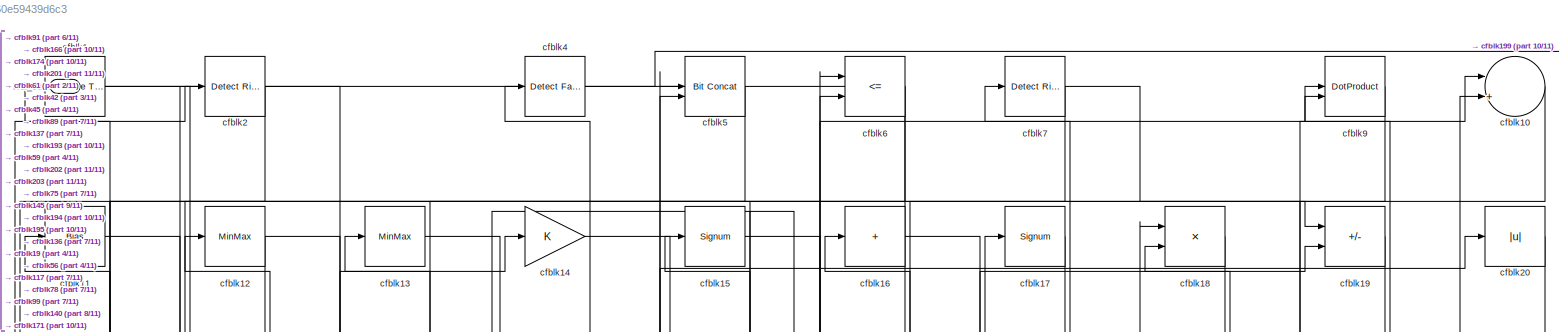
[diagram: root canvas - part 1/11, full width, top band]
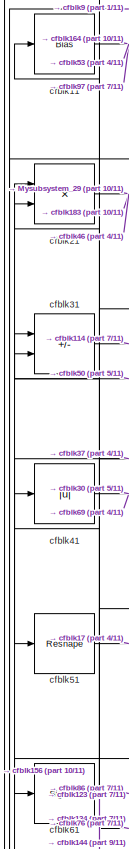
[diagram: root canvas - part 2/11, top left region]
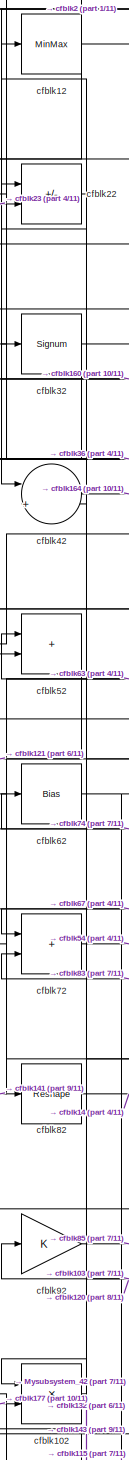
[diagram: root canvas - part 3/11, top left region]
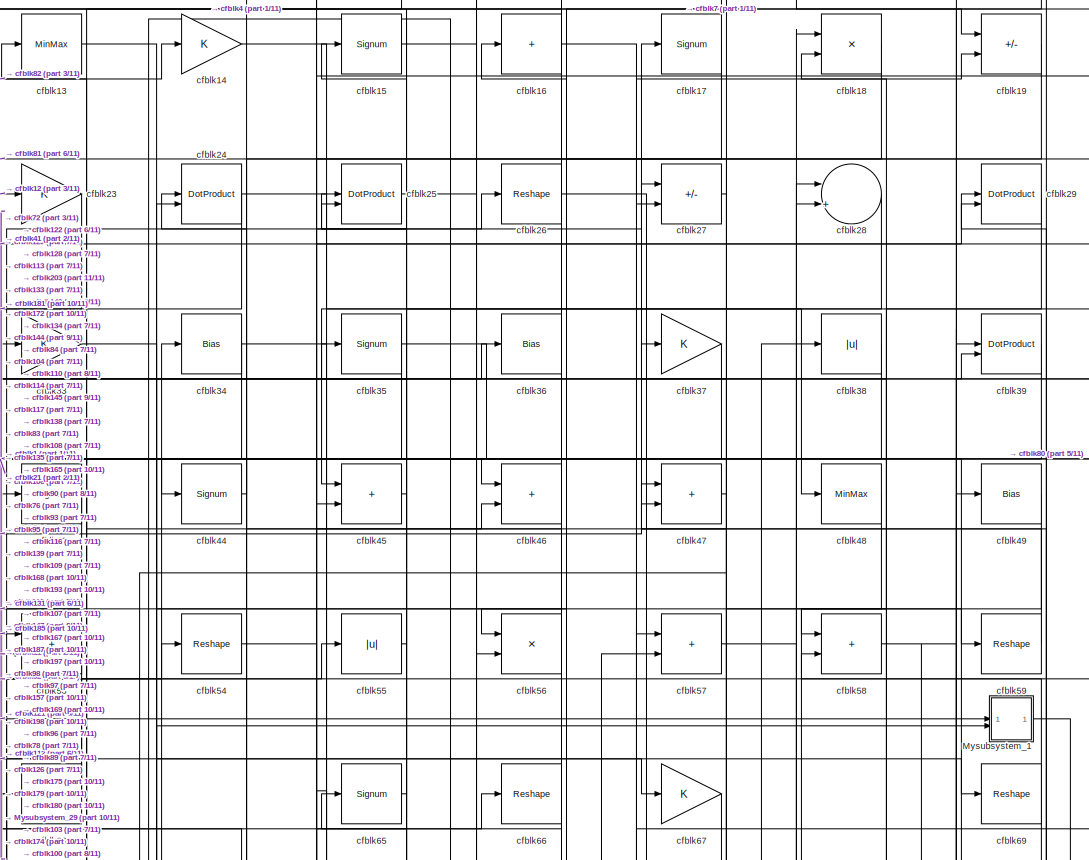
[diagram: root canvas - part 4/11, top center region]
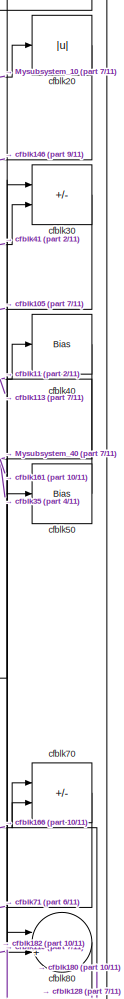
[diagram: root canvas - part 5/11, top right region]
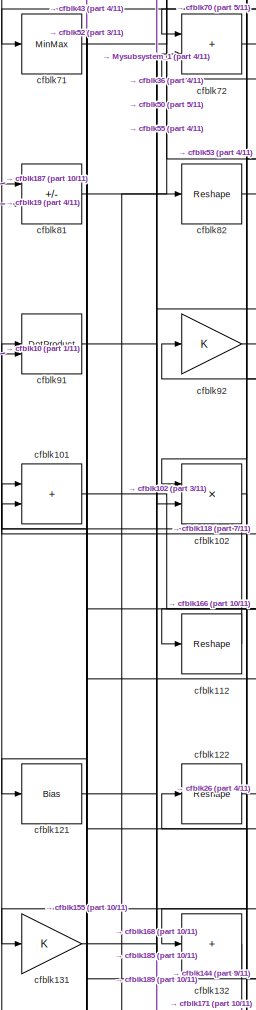
[diagram: root canvas - part 6/11, middle left region]
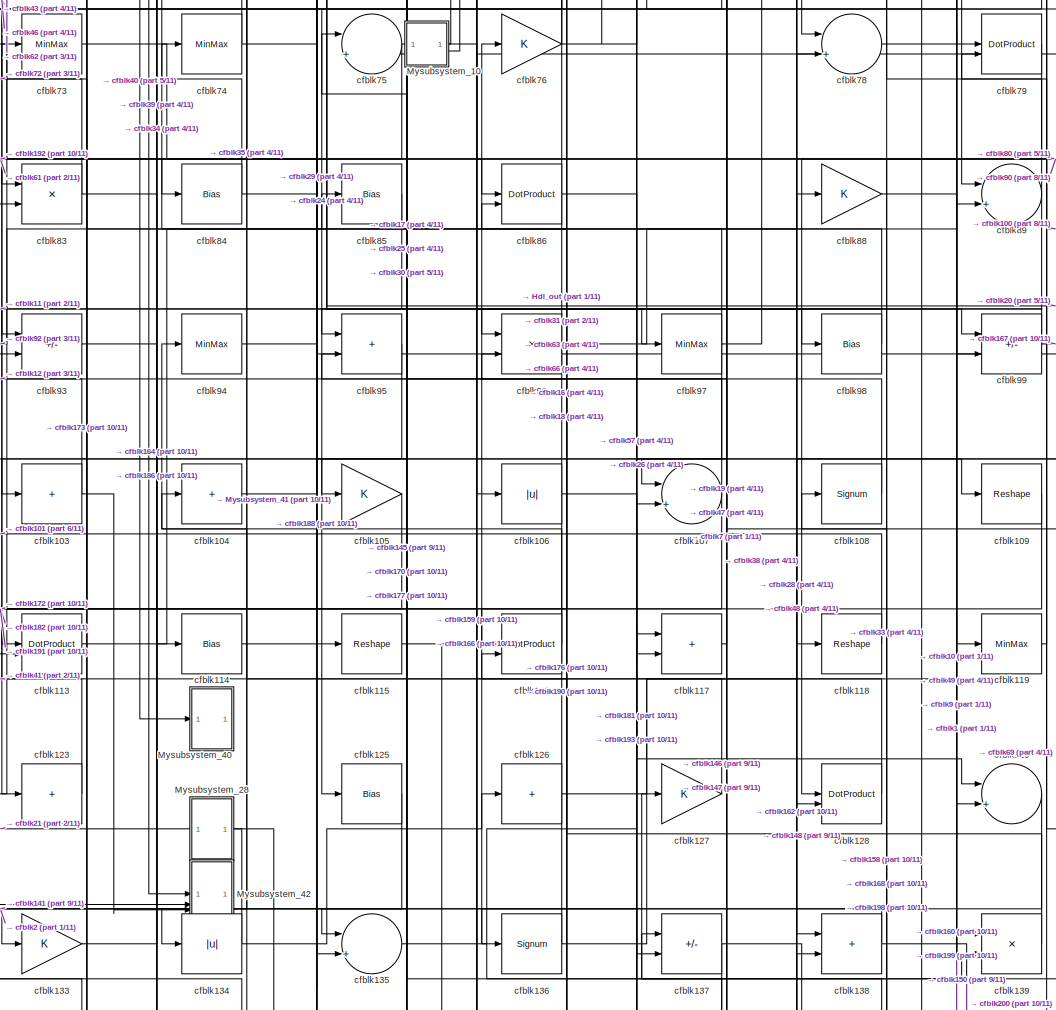
[diagram: root canvas - part 7/11, central region]
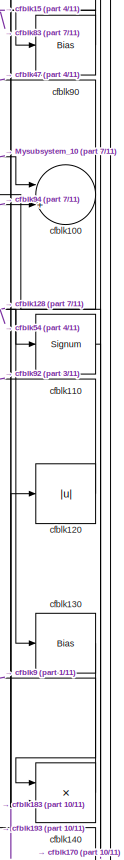
[diagram: root canvas - part 8/11, middle right region]
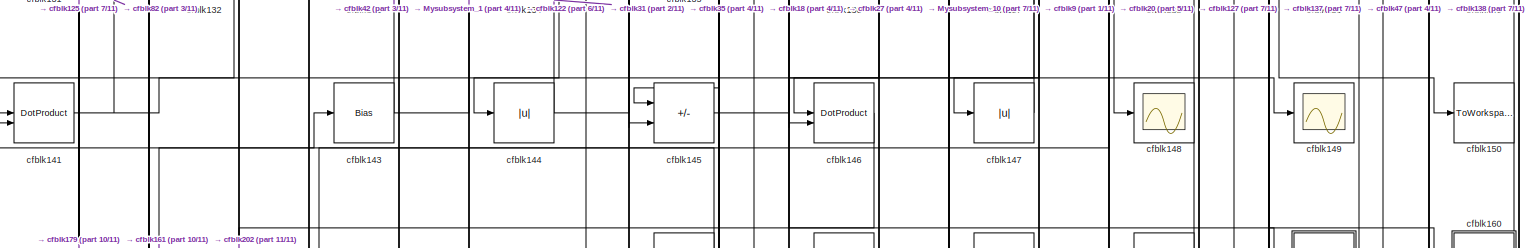
[diagram: root canvas - part 9/11, full width, bottom band]
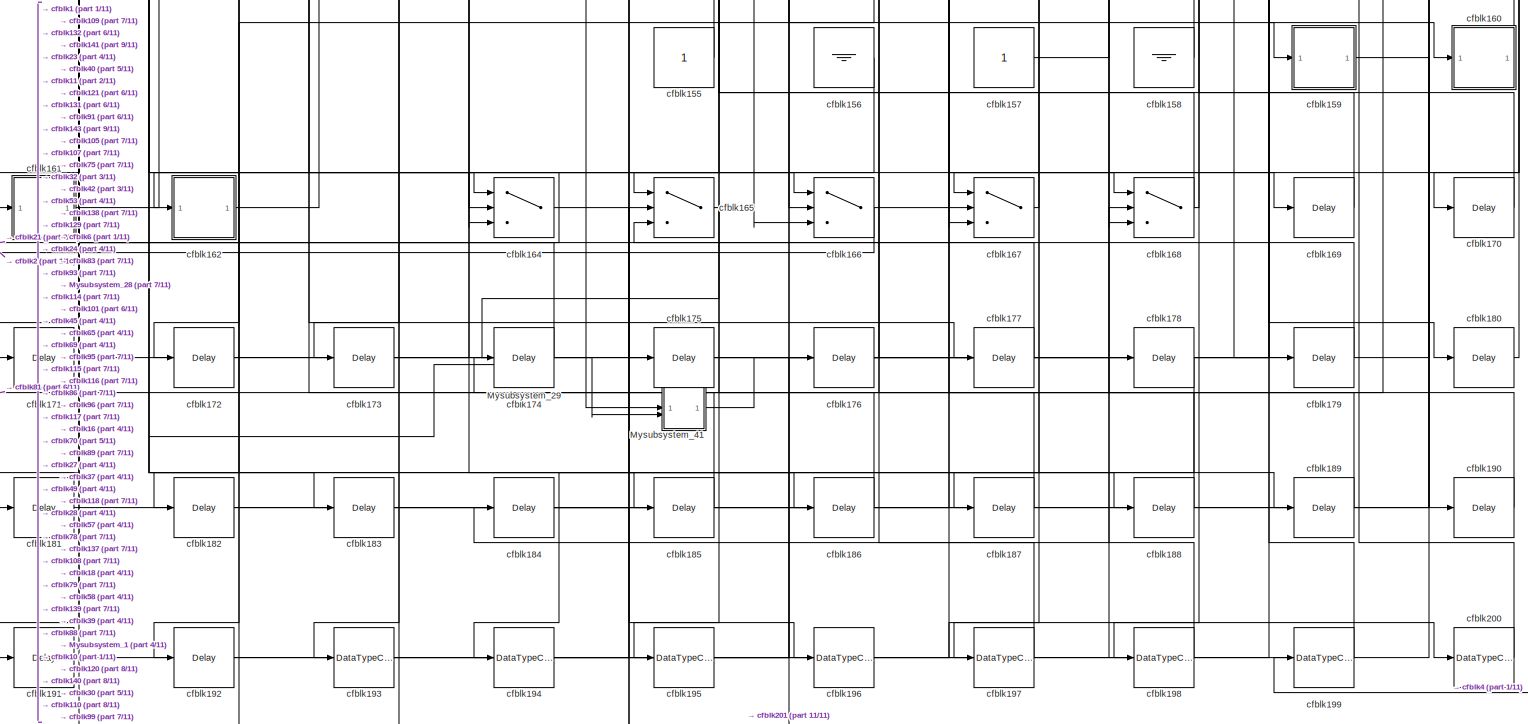
[diagram: root canvas - part 10/11, full width, bottom band]
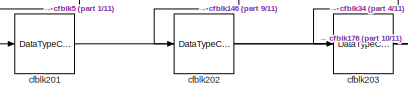
[diagram: root canvas - part 11/11, bottom left region]
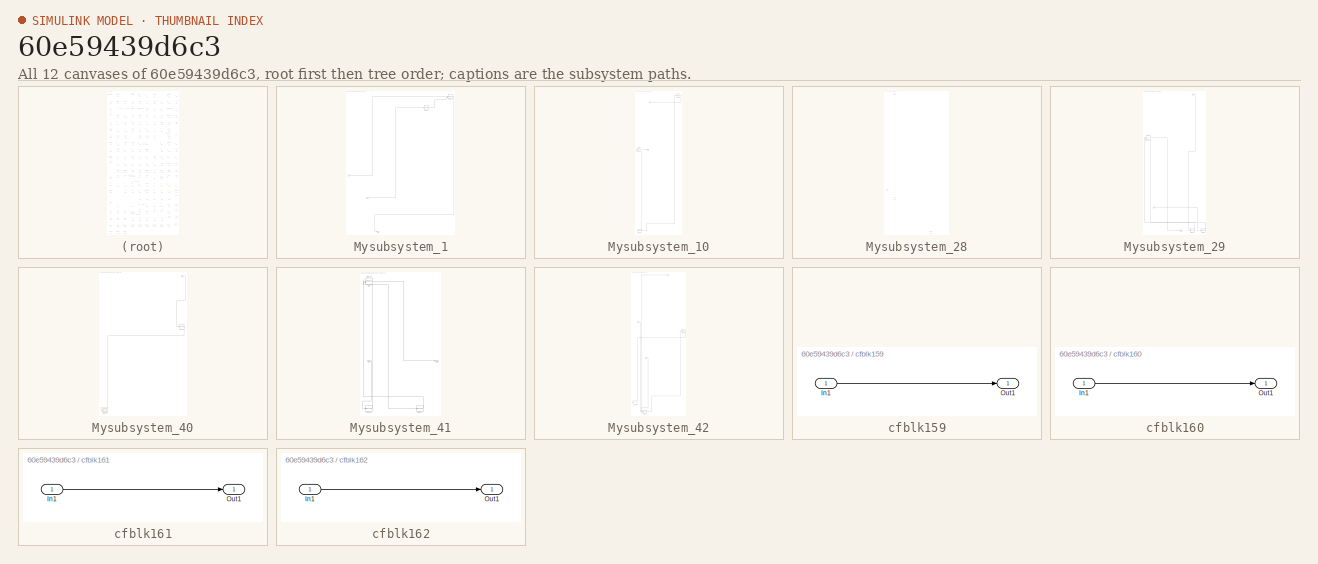
[diagram: thumbnail index - all 12 canvases of the model, root first then tree order]
MODEL slx_60e59439d6c3
KIND model
CONFIG AbsTol = auto
CONFIG EnableMultiTasking = off
CONFIG FixedStep = auto
CONFIG MaxStep = auto
CONFIG MinStep = auto
CONFIG RelTol = 1e-3
CONFIG SampleTimeConstraint = Unconstrained
CONFIG SolverName = VariableStepAuto
CONFIG StartTime = 0.0
CONFIG StopTime = 10.0
BLOCK [Outport] Hdl_out
  OutDataTypeStr = uint8
BLOCK [SubSystem] Mysubsystem_1
  RTWFcnName = Mysubsystem_1
  RTWFcnNameOpts = User specified
  RTWFileNameOpts = Use function name
  RTWSystemCode = Reusable function
  TreatAsAtomicUnit = on
BLOCK [Inport] Mysubsystem_1/In1
BLOCK [Inport] Mysubsystem_1/In2
  Port = 2
BLOCK [Outport] Mysubsystem_1/Out1
BLOCK [DotProduct] Mysubsystem_1/cfblk60
  OutDataTypeStr = Inherit: Inherit via internal rule
BLOCK [Signum] Mysubsystem_1/cfblk68
BLOCK [SubSystem] Mysubsystem_10
  RTWFcnName = Mysubsystem_10
  RTWFcnNameOpts = User specified
  RTWFileNameOpts = Use function name
  RTWSystemCode = Reusable function
  TreatAsAtomicUnit = on
BLOCK [Outport] Mysubsystem_10/Out2
  Port = 2
BLOCK [Reference] Mysubsystem_10/cfblk154  REF=hdlsllib/Sources/Counter
Free-Running
  SourceBlock = hdlsllib/Sources/Counter\nFree-Running
  SourceType = Counter Free-Running
BLOCK [Gain] Mysubsystem_10/cfblk64
BLOCK [Reference] Mysubsystem_10/cfblk8  REF=simulink/Logic and Bit
Operations/Extract Bits
  LibrarySourceBlock = hdlsllib/Logic and Bit\nOperations/Extract Bits
  SourceBlock = simulink/Logic and Bit\nOperations/Extract Bits
  SourceType = Extract Bits
BLOCK [Outport] Mysubsystem_10/y
BLOCK [SubSystem] Mysubsystem_28
  RTWFcnName = Mysubsystem_28
  RTWFcnNameOpts = User specified
  RTWFileNameOpts = Use function name
  RTWSystemCode = Reusable function
  TreatAsAtomicUnit = on
BLOCK [Signum] Mysubsystem_28/cfblk142
BLOCK [Reference] Mysubsystem_28/cfblk153  REF=hdlsllib/Sources/Counter
Limited
  SourceBlock = hdlsllib/Sources/Counter\nLimited
  SourceType = Counter Limited
BLOCK [DataTypeConversion] Mysubsystem_28/cfblk208
  OutDataTypeStr = uint8
  RndMeth = Floor
  SaturateOnIntegerOverflow = off
BLOCK [Reference] Mysubsystem_28/cfblk3  REF=simulink/Logic and Bit
Operations/Extract Bits
  LibrarySourceBlock = hdlsllib/Logic and Bit\nOperations/Extract Bits
  SourceBlock = simulink/Logic and Bit\nOperations/Extract Bits
  SourceType = Extract Bits
BLOCK [Outport] Mysubsystem_28/y
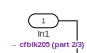
[diagram: Mysubsystem_29 - part 1/3, top right region]
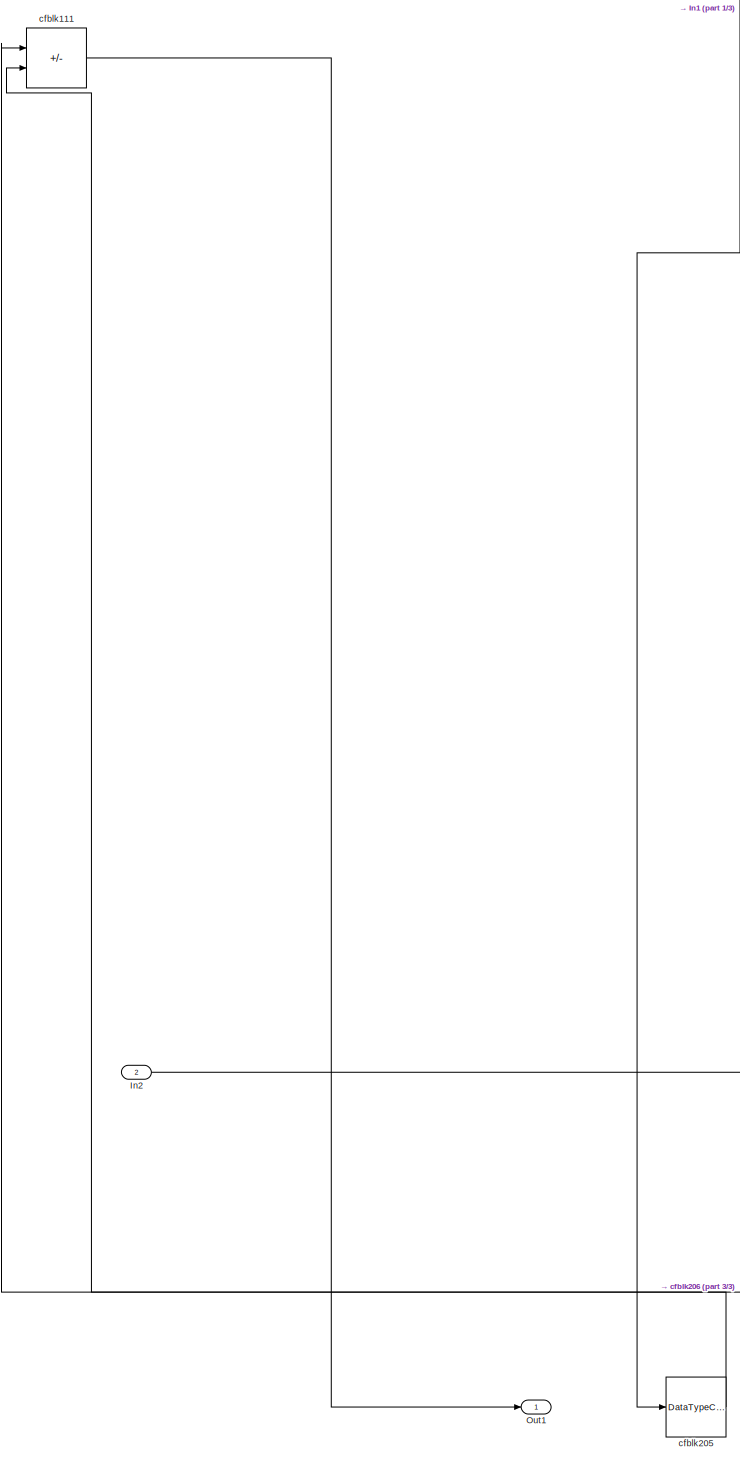
[diagram: Mysubsystem_29 - part 2/3, full width, middle band]
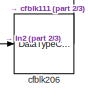
[diagram: Mysubsystem_29 - part 3/3, bottom right region]
BLOCK [SubSystem] Mysubsystem_29
  RTWFcnName = Mysubsystem_29
  RTWFcnNameOpts = User specified
  RTWFileNameOpts = Use function name
  RTWSystemCode = Reusable function
  TreatAsAtomicUnit = on
BLOCK [Inport] Mysubsystem_29/In1
BLOCK [Inport] Mysubsystem_29/In2
  Port = 2
BLOCK [Outport] Mysubsystem_29/Out1
BLOCK [Sum] Mysubsystem_29/cfblk111
  IconShape = rectangular
  Inputs = +-
BLOCK [DataTypeConversion] Mysubsystem_29/cfblk205
  OutDataTypeStr = uint8
  RndMeth = Floor
  SaturateOnIntegerOverflow = off
BLOCK [DataTypeConversion] Mysubsystem_29/cfblk206
  OutDataTypeStr = uint8
  RndMeth = Floor
  SaturateOnIntegerOverflow = off
BLOCK [SubSystem] Mysubsystem_40
  RTWFcnName = Mysubsystem_40
  RTWFcnNameOpts = User specified
  RTWFileNameOpts = Use function name
  RTWSystemCode = Reusable function
  TreatAsAtomicUnit = on
BLOCK [Inport] Mysubsystem_40/In1
BLOCK [Scope] Mysubsystem_40/cfblk151
  Floating = off
  NumInputPorts = 1
  ScopeSpecificationString = Simulink.scopes.TimeScopeBlockCfg('CurrentConfiguration', extmgr.ConfigurationSet(extmgr.Configuration('Core','General UI',true),extmgr.Configuration('Core','Source UI',true),extmgr.Configuration('Sources','WiredSimulink',true,'DataLoggingVariableName','ScopeData2','DataLoggingSaveFormat','Array','DataLoggingLimitDataPoints',true,'DataLoggingDecimation','1'),extmgr.Configuration('Visuals','Time Do...<+868ch>  <repeated x3 — deduplicated; at blocks: cfblk151, cfblk148, cfblk149>
BLOCK [Reshape] Mysubsystem_40/cfblk87
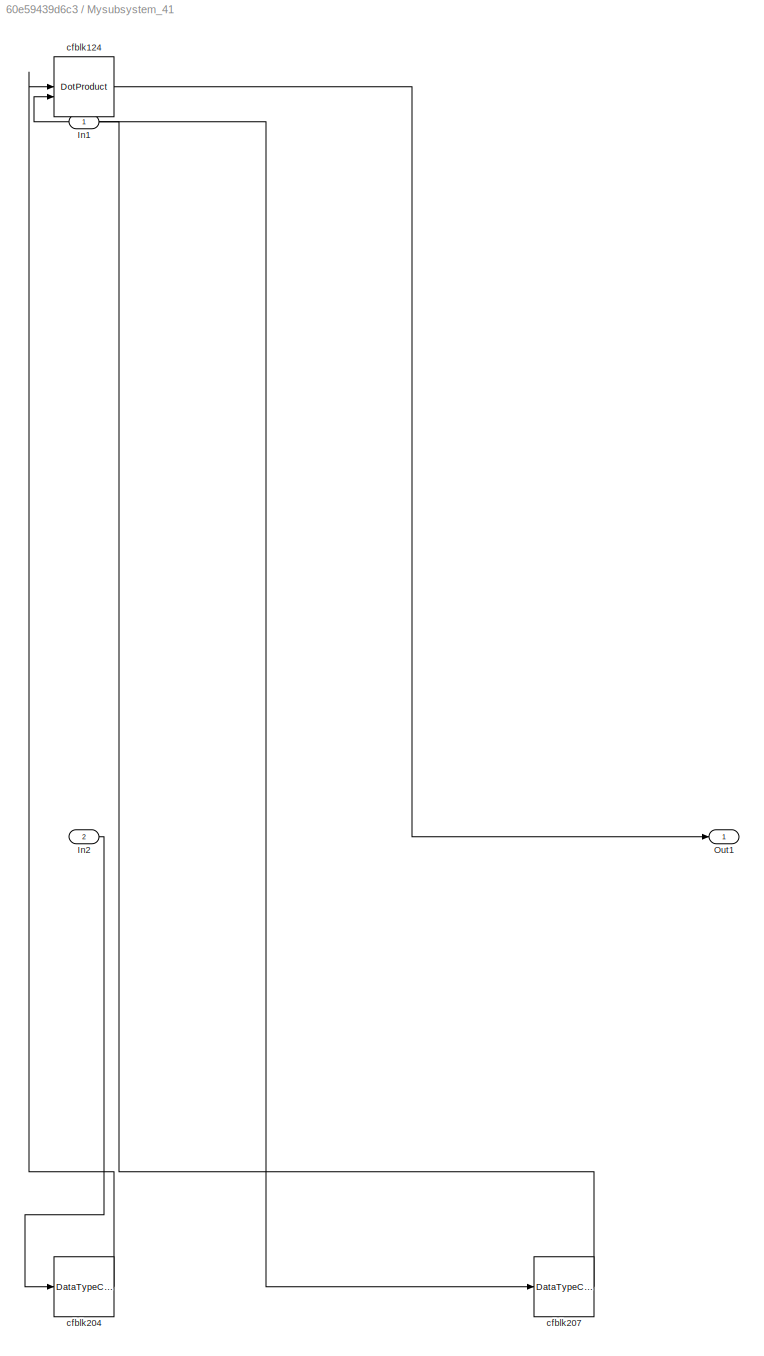
BLOCK [SubSystem] Mysubsystem_41
  RTWFcnName = Mysubsystem_41
  RTWFcnNameOpts = User specified
  RTWFileNameOpts = Use function name
  RTWSystemCode = Reusable function
  TreatAsAtomicUnit = on
BLOCK [Inport] Mysubsystem_41/In1
BLOCK [Inport] Mysubsystem_41/In2
  Port = 2
BLOCK [Outport] Mysubsystem_41/Out1
BLOCK [DotProduct] Mysubsystem_41/cfblk124
  OutDataTypeStr = Inherit: Inherit via internal rule
BLOCK [DataTypeConversion] Mysubsystem_41/cfblk204
  OutDataTypeStr = uint8
  RndMeth = Floor
  SaturateOnIntegerOverflow = off
BLOCK [DataTypeConversion] Mysubsystem_41/cfblk207
  OutDataTypeStr = uint8
  RndMeth = Floor
  SaturateOnIntegerOverflow = off
BLOCK [SubSystem] Mysubsystem_42
  RTWFcnName = Mysubsystem_42
  RTWFcnNameOpts = User specified
  RTWFileNameOpts = Use function name
  RTWSystemCode = Reusable function
  TreatAsAtomicUnit = on
BLOCK [Inport] Mysubsystem_42/In1
BLOCK [Inport] Mysubsystem_42/In2
  Port = 2
BLOCK [Inport] Mysubsystem_42/In3
  Port = 3
BLOCK [Terminator] Mysubsystem_42/cfblk152
BLOCK [Switch] Mysubsystem_42/cfblk163
  InputSameDT = off
  SaturateOnIntegerOverflow = off
BLOCK [MinMax] Mysubsystem_42/cfblk77
BLOCK [Reference] cfblk1  REF=hdlsllib/Logic and Bit
Operations/Compare
To Constant
  SourceBlock = hdlsllib/Logic and Bit\nOperations/Compare\nTo Constant
  SourceType = Compare To Constant
BLOCK [Sum] cfblk10
  Inputs = |++
  OutDataTypeStr = uint8
BLOCK [Sum] cfblk100
  Inputs = |++
  OutDataTypeStr = uint8
BLOCK [Sum] cfblk101
  IconShape = rectangular
  OutDataTypeStr = uint8
BLOCK [Product] cfblk102
  Inputs = */
  OutDataTypeStr = uint8
  RndMeth = Zero
  SaturateOnIntegerOverflow = on
BLOCK [Sum] cfblk103
  IconShape = rectangular
  Inputs = +
  OutDataTypeStr = uint8
BLOCK [Sum] cfblk104
  IconShape = rectangular
  Inputs = +
  OutDataTypeStr = uint8
BLOCK [Gain] cfblk105
  OutDataTypeStr = uint8
BLOCK [Abs] cfblk106
  OutDataTypeStr = uint8
  SaturateOnIntegerOverflow = off
BLOCK [Sum] cfblk107
  Inputs = |++
  OutDataTypeStr = uint8
BLOCK [Signum] cfblk108
BLOCK [Reshape] cfblk109
BLOCK [Bias] cfblk11
  Bias = 0.0
  SaturateOnIntegerOverflow = off
BLOCK [Signum] cfblk110
BLOCK [Reshape] cfblk112
BLOCK [DotProduct] cfblk113
  OutDataTypeStr = uint8
BLOCK [Bias] cfblk114
  Bias = 0.0
  SaturateOnIntegerOverflow = off
BLOCK [Reshape] cfblk115
BLOCK [DotProduct] cfblk116
  OutDataTypeStr = uint8
BLOCK [Sum] cfblk117
  IconShape = rectangular
  OutDataTypeStr = uint8
BLOCK [Reshape] cfblk118
BLOCK [MinMax] cfblk119
  OutDataTypeStr = uint8
BLOCK [MinMax] cfblk12
  OutDataTypeStr = uint8
BLOCK [Abs] cfblk120
  OutDataTypeStr = uint8
  SaturateOnIntegerOverflow = off
BLOCK [Bias] cfblk121
  Bias = 0.0
  SaturateOnIntegerOverflow = off
BLOCK [Reshape] cfblk122
BLOCK [Sum] cfblk123
  IconShape = rectangular
  Inputs = +
  OutDataTypeStr = uint8
BLOCK [Bias] cfblk125
  Bias = 0.0
  SaturateOnIntegerOverflow = off
BLOCK [Sum] cfblk126
  IconShape = rectangular
  Inputs = +
  OutDataTypeStr = uint8
BLOCK [Gain] cfblk127
  OutDataTypeStr = uint8
BLOCK [DotProduct] cfblk128
  OutDataTypeStr = uint8
BLOCK [Sum] cfblk129
  Inputs = |++
  OutDataTypeStr = uint8
BLOCK [MinMax] cfblk13
  OutDataTypeStr = uint8
BLOCK [Bias] cfblk130
  Bias = 0.0
  SaturateOnIntegerOverflow = off
BLOCK [Gain] cfblk131
  OutDataTypeStr = uint8
BLOCK [Sum] cfblk132
  IconShape = rectangular
  Inputs = +
  OutDataTypeStr = uint8
BLOCK [Gain] cfblk133
  OutDataTypeStr = uint8
BLOCK [Abs] cfblk134
  OutDataTypeStr = uint8
  SaturateOnIntegerOverflow = off
BLOCK [Sum] cfblk135
  Inputs = |++
  OutDataTypeStr = uint8
BLOCK [Signum] cfblk136
BLOCK [Sum] cfblk137
  IconShape = rectangular
  Inputs = +-
  OutDataTypeStr = uint8
BLOCK [Sum] cfblk138
  IconShape = rectangular
  OutDataTypeStr = uint8
BLOCK [Product] cfblk139
  Inputs = */
  OutDataTypeStr = uint8
  RndMeth = Zero
  SaturateOnIntegerOverflow = on
BLOCK [Gain] cfblk14
  OutDataTypeStr = uint8
BLOCK [Product] cfblk140
  Inputs = */
  OutDataTypeStr = uint8
  RndMeth = Zero
  SaturateOnIntegerOverflow = on
BLOCK [DotProduct] cfblk141
  OutDataTypeStr = uint8
BLOCK [Bias] cfblk143
  Bias = 0.0
  SaturateOnIntegerOverflow = off
BLOCK [Abs] cfblk144
  OutDataTypeStr = uint8
  SaturateOnIntegerOverflow = off
BLOCK [Sum] cfblk145
  IconShape = rectangular
  Inputs = +-
  OutDataTypeStr = uint8
BLOCK [DotProduct] cfblk146
  OutDataTypeStr = uint8
BLOCK [Abs] cfblk147
  OutDataTypeStr = uint8
  SaturateOnIntegerOverflow = off
BLOCK [Scope] cfblk148
  Floating = off
  NumInputPorts = 1
BLOCK [Scope] cfblk149
  Floating = off
  NumInputPorts = 1
BLOCK [Signum] cfblk15
BLOCK [ToWorkspace] cfblk150
  MaxDataPoints = inf
  SampleTime = -1
  SaveFormat = Timeseries
  VariableName = simout
BLOCK [Constant] cfblk155
  OutDataTypeStr = uint8
  SampleTime = -1
BLOCK [Ground] cfblk156
BLOCK [Constant] cfblk157
  OutDataTypeStr = uint8
  SampleTime = -1
BLOCK [Ground] cfblk158
BLOCK [SubSystem] cfblk159
  LibrarySourceBlock = hdlsllib/Ports &\nSubsystems/Subsystem
BLOCK [Inport] cfblk159/In1
BLOCK [Outport] cfblk159/Out1
BLOCK [Sum] cfblk16
  IconShape = rectangular
  Inputs = +
  OutDataTypeStr = uint8
BLOCK [SubSystem] cfblk160
  LibrarySourceBlock = hdlsllib/Ports &\nSubsystems/Subsystem
BLOCK [Inport] cfblk160/In1
BLOCK [Outport] cfblk160/Out1
BLOCK [SubSystem] cfblk161
  LibrarySourceBlock = hdlsllib/Ports &\nSubsystems/Subsystem
BLOCK [Inport] cfblk161/In1
BLOCK [Outport] cfblk161/Out1
BLOCK [SubSystem] cfblk162
  LibrarySourceBlock = hdlsllib/Ports &\nSubsystems/Subsystem
BLOCK [Inport] cfblk162/In1
BLOCK [Outport] cfblk162/Out1
BLOCK [Switch] cfblk164
  InputSameDT = off
  OutDataTypeStr = uint8
  SaturateOnIntegerOverflow = off
BLOCK [Switch] cfblk165
  InputSameDT = off
  OutDataTypeStr = uint8
  SaturateOnIntegerOverflow = off
BLOCK [Switch] cfblk166
  InputSameDT = off
  OutDataTypeStr = uint8
  SaturateOnIntegerOverflow = off
BLOCK [Switch] cfblk167
  InputSameDT = off
  OutDataTypeStr = uint8
  SaturateOnIntegerOverflow = off
BLOCK [Switch] cfblk168
  InputSameDT = off
  OutDataTypeStr = uint8
  SaturateOnIntegerOverflow = off
BLOCK [Delay] cfblk169
  InputPortMap = u0
  SampleTime = 1
BLOCK [Signum] cfblk17
BLOCK [Delay] cfblk170
  InputPortMap = u0
  SampleTime = 1
BLOCK [Delay] cfblk171
  InputPortMap = u0
  SampleTime = 1
BLOCK [Delay] cfblk172
  InputPortMap = u0
  SampleTime = 1
BLOCK [Delay] cfblk173
  InputPortMap = u0
  SampleTime = 1
BLOCK [Delay] cfblk174
  InputPortMap = u0
  SampleTime = 1
BLOCK [Delay] cfblk175
  InputPortMap = u0
  SampleTime = 1
BLOCK [Delay] cfblk176
  InputPortMap = u0
  SampleTime = 1
BLOCK [Delay] cfblk177
  InputPortMap = u0
  SampleTime = 1
BLOCK [Delay] cfblk178
  InputPortMap = u0
  SampleTime = 1
BLOCK [Delay] cfblk179
  InputPortMap = u0
  SampleTime = 1
BLOCK [Product] cfblk18
  Inputs = */
  OutDataTypeStr = uint8
  RndMeth = Zero
  SaturateOnIntegerOverflow = on
BLOCK [Delay] cfblk180
  InputPortMap = u0
  SampleTime = 1
BLOCK [Delay] cfblk181
  InputPortMap = u0
  SampleTime = 1
BLOCK [Delay] cfblk182
  InputPortMap = u0
  SampleTime = 1
BLOCK [Delay] cfblk183
  InputPortMap = u0
  SampleTime = 1
BLOCK [Delay] cfblk184
  InputPortMap = u0
  SampleTime = 1
BLOCK [Delay] cfblk185
  InputPortMap = u0
  SampleTime = 1
BLOCK [Delay] cfblk186
  InputPortMap = u0
  SampleTime = 1
BLOCK [Delay] cfblk187
  InputPortMap = u0
  SampleTime = 1
BLOCK [Delay] cfblk188
  InputPortMap = u0
  SampleTime = 1
BLOCK [Delay] cfblk189
  InputPortMap = u0
  SampleTime = 1
BLOCK [Sum] cfblk19
  IconShape = rectangular
  Inputs = +-
  OutDataTypeStr = uint8
BLOCK [Delay] cfblk190
  InputPortMap = u0
  SampleTime = 1
BLOCK [Delay] cfblk191
  InputPortMap = u0
  SampleTime = 1
BLOCK [Delay] cfblk192
  InputPortMap = u0
  SampleTime = 1
BLOCK [DataTypeConversion] cfblk193
  OutDataTypeStr = uint8
  RndMeth = Floor
  SaturateOnIntegerOverflow = off
BLOCK [DataTypeConversion] cfblk194
  OutDataTypeStr = uint8
  RndMeth = Floor
  SaturateOnIntegerOverflow = off
BLOCK [DataTypeConversion] cfblk195
  OutDataTypeStr = uint8
  RndMeth = Floor
  SaturateOnIntegerOverflow = off
BLOCK [DataTypeConversion] cfblk196
  OutDataTypeStr = uint8
  RndMeth = Floor
  SaturateOnIntegerOverflow = off
BLOCK [DataTypeConversion] cfblk197
  OutDataTypeStr = uint8
  RndMeth = Floor
  SaturateOnIntegerOverflow = off
BLOCK [DataTypeConversion] cfblk198
  OutDataTypeStr = uint8
  RndMeth = Floor
  SaturateOnIntegerOverflow = off
BLOCK [DataTypeConversion] cfblk199
  OutDataTypeStr = uint8
  RndMeth = Floor
  SaturateOnIntegerOverflow = off
BLOCK [Reference] cfblk2  REF=hdlsllib/Logic and Bit
Operations/Detect Rise
Nonnegative
  SourceBlock = hdlsllib/Logic and Bit\nOperations/Detect Rise\nNonnegative
  SourceType = Detect Rise Nonnegative
BLOCK [Abs] cfblk20
  OutDataTypeStr = uint8
  SaturateOnIntegerOverflow = off
BLOCK [DataTypeConversion] cfblk200
  OutDataTypeStr = uint8
  RndMeth = Floor
  SaturateOnIntegerOverflow = off
BLOCK [DataTypeConversion] cfblk201
  OutDataTypeStr = uint8
  RndMeth = Floor
  SaturateOnIntegerOverflow = off
BLOCK [DataTypeConversion] cfblk202
  OutDataTypeStr = uint8
  RndMeth = Floor
  SaturateOnIntegerOverflow = off
BLOCK [DataTypeConversion] cfblk203
  OutDataTypeStr = uint8
  RndMeth = Floor
  SaturateOnIntegerOverflow = off
BLOCK [Product] cfblk21
  Inputs = */
  OutDataTypeStr = uint8
  RndMeth = Zero
  SaturateOnIntegerOverflow = on
BLOCK [Sum] cfblk22
  IconShape = rectangular
  Inputs = +-
  OutDataTypeStr = uint8
BLOCK [Gain] cfblk23
  OutDataTypeStr = uint8
BLOCK [DotProduct] cfblk24
  OutDataTypeStr = uint8
BLOCK [DotProduct] cfblk25
  OutDataTypeStr = uint8
BLOCK [Reshape] cfblk26
BLOCK [Sum] cfblk27
  IconShape = rectangular
  Inputs = +-
  OutDataTypeStr = uint8
BLOCK [Sum] cfblk28
  Inputs = |++
  OutDataTypeStr = uint8
BLOCK [DotProduct] cfblk29
  OutDataTypeStr = uint8
BLOCK [Sum] cfblk30
  IconShape = rectangular
  Inputs = +-
  OutDataTypeStr = uint8
BLOCK [Sum] cfblk31
  IconShape = rectangular
  Inputs = +-
  OutDataTypeStr = uint8
BLOCK [Signum] cfblk32
BLOCK [Gain] cfblk33
  OutDataTypeStr = uint8
BLOCK [Bias] cfblk34
  Bias = 0.0
  SaturateOnIntegerOverflow = off
BLOCK [Signum] cfblk35
BLOCK [Bias] cfblk36
  Bias = 0.0
  SaturateOnIntegerOverflow = off
BLOCK [Gain] cfblk37
  OutDataTypeStr = uint8
BLOCK [Abs] cfblk38
  OutDataTypeStr = uint8
  SaturateOnIntegerOverflow = off
BLOCK [DotProduct] cfblk39
  OutDataTypeStr = uint8
BLOCK [Reference] cfblk4  REF=hdlsllib/Logic and Bit
Operations/Detect Fall
Nonpositive
  SourceBlock = hdlsllib/Logic and Bit\nOperations/Detect Fall\nNonpositive
  SourceType = Detect Fall Nonpositive
BLOCK [Bias] cfblk40
  Bias = 0.0
  SaturateOnIntegerOverflow = off
BLOCK [Abs] cfblk41
  OutDataTypeStr = uint8
  SaturateOnIntegerOverflow = off
BLOCK [Sum] cfblk42
  Inputs = |++
  OutDataTypeStr = uint8
BLOCK [Signum] cfblk43
BLOCK [Signum] cfblk44
BLOCK [Sum] cfblk45
  IconShape = rectangular
  OutDataTypeStr = uint8
BLOCK [Sum] cfblk46
  IconShape = rectangular
  OutDataTypeStr = uint8
BLOCK [Sum] cfblk47
  IconShape = rectangular
  OutDataTypeStr = uint8
BLOCK [MinMax] cfblk48
  OutDataTypeStr = uint8
BLOCK [Bias] cfblk49
  Bias = 0.0
  SaturateOnIntegerOverflow = off
BLOCK [Reference] cfblk5  REF=hdlsllib/Logic and Bit
Operations/Bit Concat
  SourceBlock = hdlsllib/Logic and Bit\nOperations/Bit Concat
  SourceType = Bit Concat
BLOCK [Bias] cfblk50
  Bias = 0.0
  SaturateOnIntegerOverflow = off
BLOCK [Reshape] cfblk51
BLOCK [Sum] cfblk52
  IconShape = rectangular
  OutDataTypeStr = uint8
BLOCK [Sum] cfblk53
  IconShape = rectangular
  OutDataTypeStr = uint8
BLOCK [Reshape] cfblk54
BLOCK [Abs] cfblk55
  OutDataTypeStr = uint8
  SaturateOnIntegerOverflow = off
BLOCK [Product] cfblk56
  Inputs = */
  OutDataTypeStr = uint8
  RndMeth = Zero
  SaturateOnIntegerOverflow = on
BLOCK [Sum] cfblk57
  IconShape = rectangular
  OutDataTypeStr = uint8
BLOCK [Sum] cfblk58
  IconShape = rectangular
  OutDataTypeStr = uint8
BLOCK [Reshape] cfblk59
BLOCK [RelationalOperator] cfblk6
  InputSameDT = off
  Operator = <=
  OutDataTypeStr = boolean
BLOCK [Signum] cfblk61
BLOCK [Bias] cfblk62
  Bias = 0.0
  SaturateOnIntegerOverflow = off
BLOCK [MinMax] cfblk63
  OutDataTypeStr = uint8
BLOCK [Signum] cfblk65
BLOCK [Reshape] cfblk66
BLOCK [Gain] cfblk67
  OutDataTypeStr = uint8
BLOCK [Reshape] cfblk69
BLOCK [Reference] cfblk7  REF=hdlsllib/Logic and Bit
Operations/Detect Rise
Positive
  SourceBlock = hdlsllib/Logic and Bit\nOperations/Detect Rise\nPositive
  SourceType = Detect Rise Positive
BLOCK [Sum] cfblk70
  IconShape = rectangular
  Inputs = +-
  OutDataTypeStr = uint8
BLOCK [MinMax] cfblk71
  OutDataTypeStr = uint8
BLOCK [Sum] cfblk72
  IconShape = rectangular
  OutDataTypeStr = uint8
BLOCK [MinMax] cfblk73
  OutDataTypeStr = uint8
BLOCK [MinMax] cfblk74
  OutDataTypeStr = uint8
BLOCK [Sum] cfblk75
  Inputs = |++
  OutDataTypeStr = uint8
BLOCK [Gain] cfblk76
  OutDataTypeStr = uint8
BLOCK [Sum] cfblk78
  Inputs = |++
  OutDataTypeStr = uint8
BLOCK [DotProduct] cfblk79
  OutDataTypeStr = uint8
BLOCK [Sum] cfblk80
  Inputs = |++
  OutDataTypeStr = uint8
BLOCK [Sum] cfblk81
  IconShape = rectangular
  Inputs = +-
  OutDataTypeStr = uint8
BLOCK [Reshape] cfblk82
BLOCK [Product] cfblk83
  Inputs = */
  OutDataTypeStr = uint8
  RndMeth = Zero
  SaturateOnIntegerOverflow = on
BLOCK [Bias] cfblk84
  Bias = 0.0
  SaturateOnIntegerOverflow = off
BLOCK [Bias] cfblk85
  Bias = 0.0
  SaturateOnIntegerOverflow = off
BLOCK [DotProduct] cfblk86
  OutDataTypeStr = uint8
BLOCK [Gain] cfblk88
  OutDataTypeStr = uint8
BLOCK [Sum] cfblk89
  Inputs = |++
  OutDataTypeStr = uint8
BLOCK [DotProduct] cfblk9
  OutDataTypeStr = uint8
BLOCK [Bias] cfblk90
  Bias = 0.0
  SaturateOnIntegerOverflow = off
BLOCK [DotProduct] cfblk91
  OutDataTypeStr = uint8
BLOCK [Gain] cfblk92
  OutDataTypeStr = uint8
BLOCK [Sum] cfblk93
  IconShape = rectangular
  Inputs = +-
  OutDataTypeStr = uint8
BLOCK [MinMax] cfblk94
  OutDataTypeStr = uint8
BLOCK [Sum] cfblk95
  IconShape = rectangular
  OutDataTypeStr = uint8
BLOCK [Product] cfblk96
  Inputs = */
  OutDataTypeStr = uint8
  RndMeth = Zero
  SaturateOnIntegerOverflow = on
BLOCK [MinMax] cfblk97
  OutDataTypeStr = uint8
BLOCK [Bias] cfblk98
  Bias = 0.0
  SaturateOnIntegerOverflow = off
BLOCK [Sum] cfblk99
  IconShape = rectangular
  Inputs = +-
  OutDataTypeStr = uint8
LINE Mysubsystem_1/In1:1 -> Mysubsystem_1/cfblk60:1
LINE Mysubsystem_1/In2:1 -> Mysubsystem_1/cfblk68:1
LINE Mysubsystem_1/cfblk60:1 -> Mysubsystem_1/Out1:1
LINE Mysubsystem_1/cfblk68:1 -> Mysubsystem_1/cfblk60:2
NET Mysubsystem_10/cfblk154:1 -> Mysubsystem_10/cfblk64:1, Mysubsystem_10/cfblk8:1
LINE Mysubsystem_10/cfblk64:1 -> Mysubsystem_10/Out2:1
LINE Mysubsystem_10/cfblk8:1 -> Mysubsystem_10/y:1
NET Mysubsystem_10:1 -> Mysubsystem_42:1, cfblk145:1
NET Mysubsystem_10:2 -> cfblk100:1, cfblk20:1
LINE Mysubsystem_1:1 -> cfblk174:1
LINE Mysubsystem_28/cfblk142:1 -> Mysubsystem_28/cfblk208:1
LINE Mysubsystem_28/cfblk153:1 -> Mysubsystem_28/cfblk142:1
LINE Mysubsystem_28/cfblk208:1 -> Mysubsystem_28/cfblk3:1
LINE Mysubsystem_28/cfblk3:1 -> Mysubsystem_28/y:1
LINE Mysubsystem_28:1 -> Mysubsystem_41:1
LINE Mysubsystem_29/In1:1 -> Mysubsystem_29/cfblk205:1
LINE Mysubsystem_29/In2:1 -> Mysubsystem_29/cfblk206:1
LINE Mysubsystem_29/cfblk111:1 -> Mysubsystem_29/Out1:1
LINE Mysubsystem_29/cfblk205:1 -> Mysubsystem_29/cfblk111:1
LINE Mysubsystem_29/cfblk206:1 -> Mysubsystem_29/cfblk111:2
LINE Mysubsystem_29:1 -> Mysubsystem_41:2
LINE Mysubsystem_40/In1:1 -> Mysubsystem_40/cfblk87:1
LINE Mysubsystem_40/cfblk87:1 -> Mysubsystem_40/cfblk151:1
LINE Mysubsystem_41/In1:1 -> Mysubsystem_41/cfblk207:1
LINE Mysubsystem_41/In2:1 -> Mysubsystem_41/cfblk204:1
LINE Mysubsystem_41/cfblk124:1 -> Mysubsystem_41/Out1:1
LINE Mysubsystem_41/cfblk204:1 -> Mysubsystem_41/cfblk124:1
LINE Mysubsystem_41/cfblk207:1 -> Mysubsystem_41/cfblk124:2
LINE Mysubsystem_41:1 -> cfblk178:1
LINE Mysubsystem_42/In1:1 -> Mysubsystem_42/cfblk163:3
LINE Mysubsystem_42/In2:1 -> Mysubsystem_42/cfblk163:2
LINE Mysubsystem_42/In3:1 -> Mysubsystem_42/cfblk163:1
LINE Mysubsystem_42/cfblk163:1 -> Mysubsystem_42/cfblk77:1
LINE Mysubsystem_42/cfblk77:1 -> Mysubsystem_42/cfblk152:1
NET cfblk100:1 -> cfblk128:2, cfblk130:1, cfblk47:2
LINE cfblk101:1 -> cfblk166:2
LINE cfblk102:1 -> cfblk132:1
NET cfblk103:1 -> Mysubsystem_42:3, cfblk12:1
LINE cfblk104:1 -> cfblk46:2
LINE cfblk105:1 -> cfblk182:1
LINE cfblk106:1 -> cfblk129:1
NET cfblk107:1 -> cfblk172:1, cfblk25:2
LINE cfblk108:1 -> cfblk35:1
LINE cfblk109:1 -> cfblk191:1
NET cfblk10:1 -> cfblk75:2, cfblk91:2
LINE cfblk110:1 -> cfblk170:1
LINE cfblk112:1 -> cfblk91:1
LINE cfblk113:1 -> cfblk40:1
NET cfblk114:1 -> cfblk188:1, cfblk29:2
NET cfblk115:1 -> cfblk159:1, cfblk166:3, cfblk80:2
LINE cfblk116:1 -> cfblk94:1
LINE cfblk117:1 -> cfblk7:1
LINE cfblk118:1 -> cfblk101:2
LINE cfblk119:1 -> cfblk29:1
NET cfblk11:1 -> cfblk164:3, cfblk53:2, cfblk97:1
LINE cfblk120:1 -> cfblk92:1
NET cfblk121:1 -> Mysubsystem_1:1, cfblk168:3
LINE cfblk122:1 -> cfblk26:1
LINE cfblk123:1 -> cfblk41:1
LINE cfblk125:1 -> cfblk141:1
LINE cfblk126:1 -> cfblk49:1
LINE cfblk127:1 -> cfblk104:1
LINE cfblk128:1 -> cfblk43:1
LINE cfblk129:1 -> cfblk173:1
NET cfblk12:1 -> cfblk22:2, cfblk23:1
LINE cfblk130:1 -> cfblk140:1
LINE cfblk131:1 -> cfblk189:1
LINE cfblk132:1 -> cfblk171:1
LINE cfblk133:1 -> cfblk39:2
NET cfblk134:1 -> cfblk126:1, cfblk21:2
NET cfblk135:1 -> cfblk107:2, cfblk139:2, cfblk76:1
NET cfblk136:1 -> Hdl_out:1, cfblk88:1
NET cfblk137:1 -> cfblk146:2, cfblk148:1
NET cfblk138:1 -> cfblk136:1, cfblk150:1
LINE cfblk139:1 -> cfblk16:1
LINE cfblk13:1 -> cfblk67:1
LINE cfblk140:1 -> cfblk9:1
NET cfblk141:1 -> cfblk149:1, cfblk82:1
NET cfblk143:1 -> Mysubsystem_1:2, cfblk42:2
NET cfblk144:1 -> cfblk122:1, cfblk27:1, cfblk31:1
LINE cfblk145:1 -> cfblk9:2
LINE cfblk146:1 -> cfblk202:1
LINE cfblk147:1 -> cfblk127:1
LINE cfblk14:1 -> cfblk48:1
LINE cfblk155:1 -> cfblk101:1
NET cfblk156:1 -> cfblk162:1, cfblk21:1
LINE cfblk157:1 -> cfblk28:2
LINE cfblk158:1 -> cfblk137:1
LINE cfblk159/In1:1 -> cfblk159/Out1:1
LINE cfblk159:1 -> cfblk190:1
LINE cfblk15:1 -> cfblk90:1
LINE cfblk160/In1:1 -> cfblk160/Out1:1
LINE cfblk160:1 -> cfblk32:1
LINE cfblk161/In1:1 -> cfblk161/Out1:1
LINE cfblk161:1 -> cfblk143:1
LINE cfblk162/In1:1 -> cfblk162/Out1:1
LINE cfblk162:1 -> cfblk138:2
LINE cfblk164:1 -> cfblk175:1
LINE cfblk165:1 -> cfblk195:1
NET cfblk166:1 -> cfblk2:1, cfblk70:1
LINE cfblk167:1 -> cfblk37:1
NET cfblk168:1 -> cfblk108:1, cfblk65:1
LINE cfblk169:1 -> cfblk18:2
NET cfblk16:1 -> cfblk109:1, cfblk168:1
LINE cfblk170:1 -> cfblk95:2
LINE cfblk171:1 -> cfblk10:2
LINE cfblk172:1 -> cfblk24:2
LINE cfblk173:1 -> cfblk89:2
LINE cfblk174:1 -> cfblk1:1
LINE cfblk175:1 -> cfblk39:1
LINE cfblk176:1 -> cfblk96:2
LINE cfblk177:1 -> cfblk75:1
LINE cfblk178:1 -> cfblk194:1
LINE cfblk179:1 -> cfblk141:2
NET cfblk17:1 -> cfblk135:1, cfblk84:1
LINE cfblk180:1 -> cfblk70:2
LINE cfblk181:1 -> cfblk117:1
LINE cfblk182:1 -> cfblk30:1
LINE cfblk183:1 -> cfblk140:2
LINE cfblk184:1 -> cfblk196:1
LINE cfblk185:1 -> cfblk53:1
LINE cfblk186:1 -> cfblk165:3
LINE cfblk187:1 -> cfblk81:1
LINE cfblk188:1 -> cfblk167:2
LINE cfblk189:1 -> cfblk168:2
NET cfblk18:1 -> cfblk116:1, cfblk145:2, cfblk27:2
LINE cfblk190:1 -> cfblk116:2
LINE cfblk191:1 -> cfblk139:1
LINE cfblk192:1 -> cfblk165:2
NET cfblk193:1 -> cfblk118:1, cfblk120:1, cfblk57:1, cfblk78:2
LINE cfblk194:1 -> cfblk6:1
LINE cfblk195:1 -> cfblk6:2
LINE cfblk196:1 -> cfblk200:1
LINE cfblk197:1 -> cfblk184:1
NET cfblk198:1 -> cfblk18:1, cfblk86:2
LINE cfblk199:1 -> cfblk79:1
NET cfblk19:1 -> cfblk107:1, cfblk81:2
NET cfblk1:1 -> cfblk45:2, cfblk89:1
LINE cfblk200:1 -> cfblk79:2
LINE cfblk201:1 -> cfblk176:1
LINE cfblk202:1 -> cfblk5:1
LINE cfblk203:1 -> cfblk5:2
LINE cfblk20:1 -> cfblk146:1
NET cfblk21:1 -> Mysubsystem_29:2, cfblk183:1, cfblk46:1
LINE cfblk22:1 -> cfblk102:1
LINE cfblk23:1 -> cfblk181:1
NET cfblk24:1 -> cfblk117:2, cfblk83:2
LINE cfblk25:1 -> cfblk106:1
LINE cfblk26:1 -> cfblk119:1
LINE cfblk27:1 -> cfblk187:1
LINE cfblk28:1 -> cfblk45:1
LINE cfblk29:1 -> cfblk58:1
NET cfblk2:1 -> cfblk137:2, cfblk42:1
LINE cfblk30:1 -> cfblk105:1
LINE cfblk31:1 -> cfblk114:1
NET cfblk32:1 -> cfblk102:2, cfblk177:1
LINE cfblk33:1 -> cfblk59:1
NET cfblk34:1 -> cfblk138:1, cfblk203:1
NET cfblk35:1 -> cfblk113:1, cfblk144:1, cfblk80:1
LINE cfblk36:1 -> cfblk52:2
LINE cfblk37:1 -> cfblk51:1
LINE cfblk38:1 -> cfblk134:1
NET cfblk39:1 -> cfblk44:1, cfblk56:2
NET cfblk40:1 -> Mysubsystem_40:1, cfblk161:1
NET cfblk41:1 -> cfblk30:2, cfblk69:1
LINE cfblk42:1 -> cfblk164:1
LINE cfblk43:1 -> cfblk131:1
LINE cfblk44:1 -> cfblk24:1
LINE cfblk45:1 -> cfblk165:1
LINE cfblk46:1 -> cfblk123:1
LINE cfblk47:1 -> cfblk147:1
LINE cfblk48:1 -> cfblk78:1
LINE cfblk49:1 -> cfblk197:1
LINE cfblk4:1 -> cfblk199:1
LINE cfblk50:1 -> cfblk11:1
LINE cfblk51:1 -> cfblk17:1
LINE cfblk52:1 -> cfblk121:1
LINE cfblk53:1 -> cfblk112:1
LINE cfblk54:1 -> cfblk110:1
LINE cfblk55:1 -> cfblk25:1
LINE cfblk56:1 -> cfblk13:1
LINE cfblk57:1 -> cfblk169:1
NET cfblk58:1 -> cfblk179:1, cfblk180:1
LINE cfblk59:1 -> cfblk4:1
LINE cfblk5:1 -> cfblk201:1
LINE cfblk61:1 -> cfblk86:1
NET cfblk62:1 -> Mysubsystem_42:2, cfblk115:1
LINE cfblk63:1 -> cfblk52:1
LINE cfblk65:1 -> cfblk15:1
NET cfblk66:1 -> cfblk93:2, cfblk95:1
LINE cfblk67:1 -> cfblk72:1
NET cfblk69:1 -> Mysubsystem_29:1, cfblk103:1, cfblk58:2
LINE cfblk6:1 -> cfblk193:1
LINE cfblk70:1 -> cfblk71:1
LINE cfblk71:1 -> cfblk50:1
NET cfblk72:1 -> cfblk22:1, cfblk54:1
LINE cfblk73:1 -> cfblk129:2
NET cfblk74:1 -> cfblk135:2, cfblk62:1
NET cfblk75:1 -> cfblk192:1, cfblk99:1
NET cfblk76:1 -> cfblk19:2, cfblk31:2, cfblk57:2, cfblk63:1
LINE cfblk78:1 -> cfblk10:1
LINE cfblk79:1 -> cfblk198:1
NET cfblk7:1 -> cfblk19:1, cfblk56:1
LINE cfblk80:1 -> cfblk128:1
NET cfblk81:1 -> cfblk36:1, cfblk55:1
LINE cfblk82:1 -> cfblk14:1
NET cfblk83:1 -> cfblk166:1, cfblk186:1, cfblk72:2
NET cfblk84:1 -> cfblk66:1, cfblk74:1
LINE cfblk85:1 -> cfblk125:1
LINE cfblk86:1 -> cfblk98:1
LINE cfblk88:1 -> cfblk160:1
NET cfblk89:1 -> cfblk167:3, cfblk33:1
LINE cfblk90:1 -> cfblk83:1
LINE cfblk91:1 -> cfblk185:1
LINE cfblk92:1 -> cfblk85:1
LINE cfblk93:1 -> cfblk164:2
LINE cfblk94:1 -> cfblk100:2
LINE cfblk95:1 -> cfblk133:1
LINE cfblk96:1 -> cfblk28:1
NET cfblk97:1 -> cfblk113:2, cfblk34:1, cfblk38:1
NET cfblk98:1 -> cfblk47:1, cfblk73:1, cfblk96:1
NET cfblk99:1 -> cfblk167:1, cfblk93:1
NET cfblk9:1 -> cfblk61:1, cfblk99:2
note: NET lines group one-source signal fan-out (src -> all destinations, sorted); 1:1 wires keep LINE
